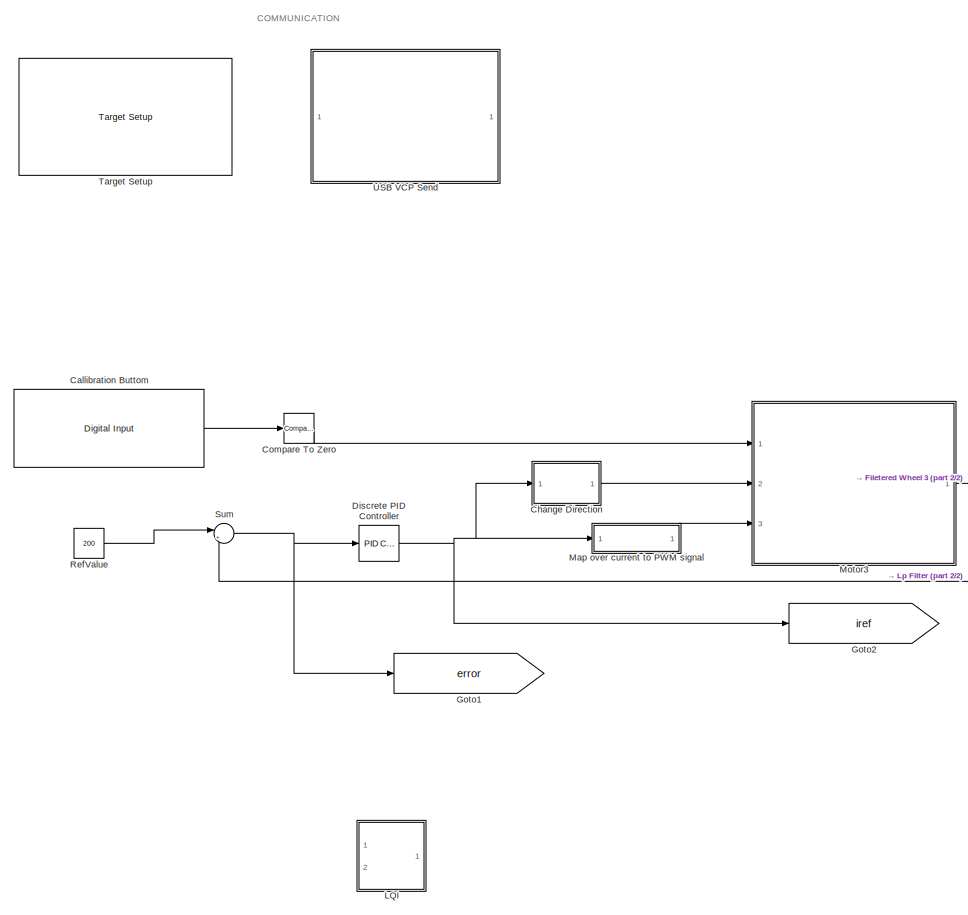
[diagram: root canvas - part 1/2, left side, full height]
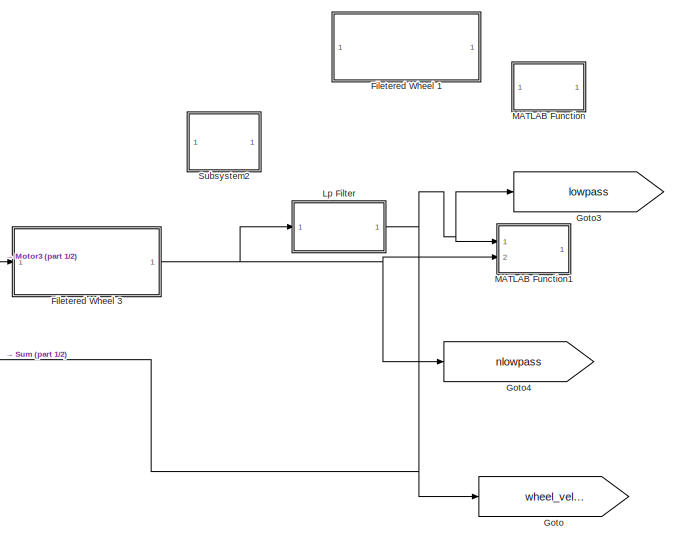
[diagram: root canvas - part 2/2, middle right region]
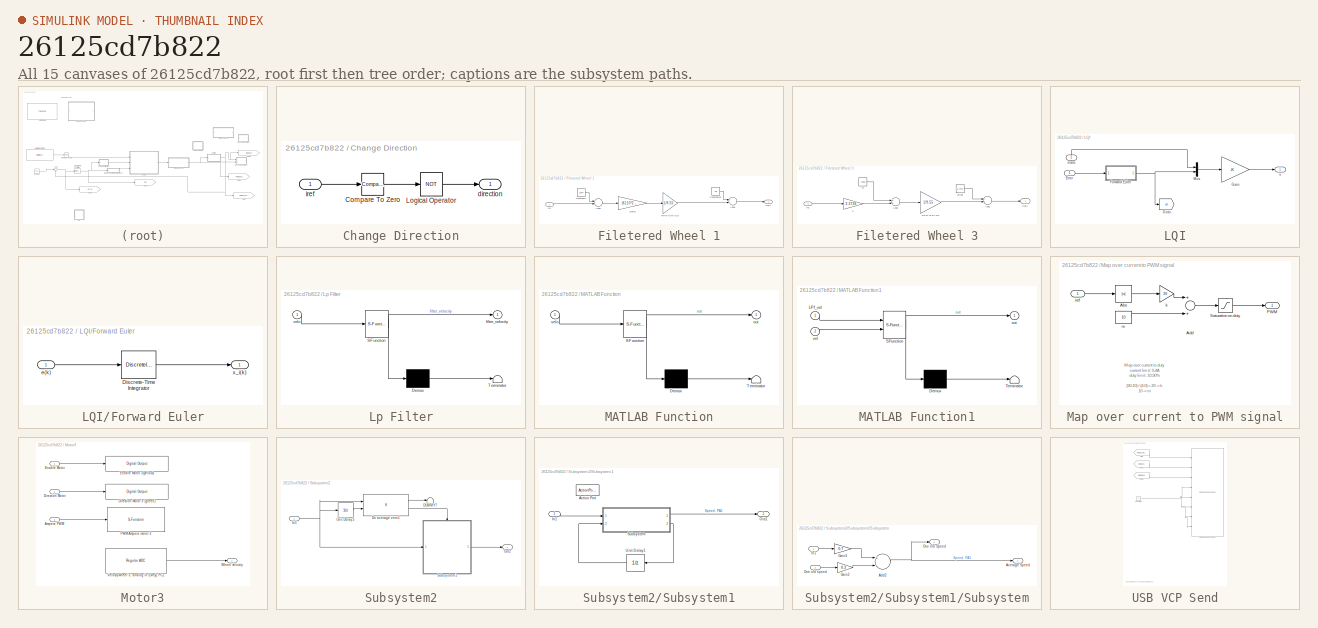
[diagram: thumbnail index - all 15 canvases of the model, root first then tree order]
MODEL slx_26125cd7b822
KIND model
CONFIG AbsTol = auto
CONFIG EnableMultiTasking = off
CONFIG FixedStep = auto
CONFIG InitFcn = cubeparameters
CONFIG MaxStep = auto
CONFIG MinStep = auto
CONFIG PreLoadFcn = waijung.modelPreload; % Required for working with Waijung Blockset. Do not remove.
CONFIG RelTol = 1e-3
CONFIG SampleTimeConstraint = Unconstrained
CONFIG Solver = FixedStepAuto
CONFIG SolverName = FixedStepAuto
CONFIG StartTime = 0.0
CONFIG StopTime = 10.0
BLOCK [Reference] Callibration Buttom  REF=stm32f4_io_lib/Digital Input
  Ports = [0, 1]
  SourceBlock = stm32f4_io_lib/Digital Input
  SourceType = stm32f4_digital_input
BLOCK [SubSystem] Change Direction
  Ports = [1, 1]
  RequestExecContextInheritance = off
  Variant = off
BLOCK [Reference] Change Direction/Compare To Zero  REF=simulink/Logic and Bit
Operations/Compare
To Zero
  Ports = [1, 1]
  SourceBlock = simulink/Logic and Bit\nOperations/Compare\nTo Zero
  SourceType = Compare To Zero
BLOCK [Logic] Change Direction/Logical Operator
  AllPortsSameDT = off
  Operator = NOT
  OutDataTypeStr = boolean
  Ports = [1, 1]
BLOCK [Outport] Change Direction/direction
  IconDisplay = Port number
BLOCK [Inport] Change Direction/iref
  IconDisplay = Port number
BLOCK [Reference] Compare To Zero  REF=simulink/Logic and Bit
Operations/Compare
To Zero
  Ports = [1, 1]
  SourceBlock = simulink/Logic and Bit\nOperations/Compare\nTo Zero
  SourceType = Compare To Zero
BLOCK [Reference] Discrete PID Controller  REF=simulink/Continuous/PID Controller
  Ports = [1, 1]
  SourceBlock = simulink/Continuous/PID Controller
  SourceType = PID 1dof
BLOCK [SubSystem] Filetered Wheel 1
  Commented = on
  Ports = [1, 1]
  RequestExecContextInheritance = off
  Variant = off
BLOCK [Sum] Filetered Wheel 1/Add3
  InputSameDT = off
  Inputs = -+
  OutDataTypeStr = Inherit: Inherit via internal rule
  Ports = [2, 1]
  SaturateOnIntegerOverflow = off
BLOCK [Sum] Filetered Wheel 1/Add9
  InputSameDT = off
  Inputs = -+
  OutDataTypeStr = Inherit: Inherit via internal rule
  Ports = [2, 1]
  SaturateOnIntegerOverflow = off
BLOCK [Constant] Filetered Wheel 1/Constant1
  SampleTime = -1
  Value = 2094
BLOCK [Constant] Filetered Wheel 1/Constant15
  SampleTime = -1
  Value = 68
BLOCK [Gain] Filetered Wheel 1/Gain2
  Gain = (6110*2)/4096
  OutDataTypeStr = Inherit: Inherit via internal rule
  ParamDataTypeStr = Inherit: Inherit via internal rule
  SaturateOnIntegerOverflow = off
BLOCK [Inport] Filetered Wheel 1/In1
  IconDisplay = Port number
BLOCK [Outport] Filetered Wheel 1/Out1
  IconDisplay = Port number
BLOCK [Gain] Filetered Wheel 1/RPM to RAD3
  Gain = 1/9.55
  OutDataTypeStr = Inherit: Inherit via internal rule
  ParamDataTypeStr = Inherit: Inherit via internal rule
  SaturateOnIntegerOverflow = off
BLOCK [SubSystem] Filetered Wheel 3
  Ports = [1, 1]
  RequestExecContextInheritance = off
  Variant = off
BLOCK [Sum] Filetered Wheel 3/Add1
  InputSameDT = off
  Inputs = -+
  OutDataTypeStr = Inherit: Inherit via internal rule
  Ports = [2, 1]
  SaturateOnIntegerOverflow = off
BLOCK [Sum] Filetered Wheel 3/Add3
  InputSameDT = off
  OutDataTypeStr = Inherit: Inherit via internal rule
  Ports = [2, 1]
  SaturateOnIntegerOverflow = off
BLOCK [Inport] Filetered Wheel 3/In1
  IconDisplay = Port number
BLOCK [Outport] Filetered Wheel 3/Out1
  IconDisplay = Port number
BLOCK [Gain] Filetered Wheel 3/RPM to RAD3
  Gain = 1/9.55
  OutDataTypeStr = Inherit: Inherit via internal rule
  ParamDataTypeStr = Inherit: Inherit via internal rule
  SaturateOnIntegerOverflow = off
BLOCK [Gain] Filetered Wheel 3/k
  Gain = 2.3736
  OutDataTypeStr = Inherit: Inherit via internal rule
  ParamDataTypeStr = Inherit: Inherit via internal rule
  SaturateOnIntegerOverflow = off
BLOCK [Constant] Filetered Wheel 3/m
  SampleTime = Ts.controller
  Value = -4860
BLOCK [Constant] Filetered Wheel 3/offset
  SampleTime = Ts.controller
  Value = 61.9744
BLOCK [Goto] Goto
  GotoTag = wheel_velocity
  TagVisibility = global
BLOCK [Goto] Goto1
  GotoTag = error
  TagVisibility = global
BLOCK [Goto] Goto2
  GotoTag = iref
  TagVisibility = global
BLOCK [Goto] Goto3
  GotoTag = lowpass
  TagVisibility = global
BLOCK [Goto] Goto4
  GotoTag = nlowpass
  TagVisibility = global
BLOCK [SubSystem] LQI
  Commented = on
  Ports = [2, 1]
  RequestExecContextInheritance = off
  Variant = off
BLOCK [Inport] LQI/Error
  IconDisplay = Port number
BLOCK [SubSystem] LQI/Forward Euler
  Ports = [1, 1]
  RequestExecContextInheritance = off
  Variant = off
BLOCK [DiscreteIntegrator] LQI/Forward Euler/Discrete-Time Integrator
  ICPrevOutput = DiscIntNeverNeededParam
  ICPrevScaledInput = DiscIntNeverNeededParam
  InitialConditionSetting = State (most efficient)
  LimitOutput = on
  LowerSaturationLimit = -motor.Imax
  Ports = [1, 1]
  SampleTime = Ts.controller
  UpperSaturationLimit = motor.Imax
BLOCK [Inport] LQI/Forward Euler/e(k)
  IconDisplay = Port number
BLOCK [Outport] LQI/Forward Euler/x_i(k)
  IconDisplay = Port number
BLOCK [Gain] LQI/Gain
  Gain = -K
  Multiplication = Matrix(K*u) (u vector)
  OutDataTypeStr = Inherit: Inherit via internal rule
  ParamDataTypeStr = Inherit: Inherit via internal rule
  SaturateOnIntegerOverflow = off
BLOCK [Goto] LQI/Goto
  GotoTag = xi
  TagVisibility = global
BLOCK [Mux] LQI/Mux
  DisplayOption = bar
  Inputs = 2
  Ports = [2, 1]
BLOCK [Inport] LQI/state
  IconDisplay = Port number
  Port = 2
BLOCK [Outport] LQI/u
  IconDisplay = Port number
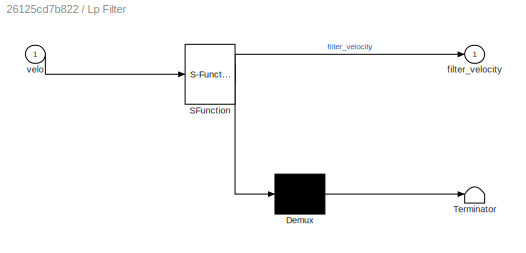
BLOCK [SubSystem] Lp Filter
  ErrorFcn = Stateflow.Translate.translate
  PermitHierarchicalResolution = ExplicitOnly
  Ports = [1, 1]
  RequestExecContextInheritance = off
  SFBlockType = MATLAB Function
  TreatAsAtomicUnit = on
  Variant = off
BLOCK [Demux] Lp Filter/ Demux 
  Outputs = 1
  Ports = [1, 1]
BLOCK [S-Function] Lp Filter/ SFunction 
  EnableBusSupport = on
  FunctionName = sf_sfun
  Parameters = Ts
  PortCounts = [1 2]
  Ports = [1, 2]
  SFcnIsStateOwnerBlock = off
  SFunctionDeploymentMode = off
  Tag = Stateflow S-Function MotorSpeedController 10
BLOCK [Terminator] Lp Filter/ Terminator 
BLOCK [Outport] Lp Filter/filter_velocity
  IconDisplay = Port number
BLOCK [Inport] Lp Filter/velo
  IconDisplay = Port number
BLOCK [SubSystem] MATLAB Function
  Commented = on
  ErrorFcn = Stateflow.Translate.translate
  PermitHierarchicalResolution = ExplicitOnly
  Ports = [1, 1]
  RequestExecContextInheritance = off
  SFBlockType = MATLAB Function
  TreatAsAtomicUnit = on
  Variant = off
BLOCK [Demux] MATLAB Function/ Demux 
  Outputs = 1
  Ports = [1, 1]
BLOCK [S-Function] MATLAB Function/ SFunction 
  EnableBusSupport = on
  FunctionName = sf_sfun
  PortCounts = [1 2]
  Ports = [1, 2]
  SFcnIsStateOwnerBlock = off
  SFunctionDeploymentMode = off
  Tag = Stateflow S-Function MotorSpeedController 2
BLOCK [Terminator] MATLAB Function/ Terminator 
BLOCK [Outport] MATLAB Function/out
  IconDisplay = Port number
BLOCK [Inport] MATLAB Function/velo
  IconDisplay = Port number
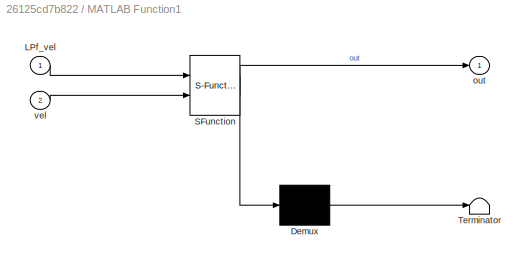
BLOCK [SubSystem] MATLAB Function1
  ErrorFcn = Stateflow.Translate.translate
  PermitHierarchicalResolution = ExplicitOnly
  Ports = [2, 1]
  RequestExecContextInheritance = off
  SFBlockType = MATLAB Function
  TreatAsAtomicUnit = on
  Variant = off
BLOCK [Demux] MATLAB Function1/ Demux 
  Outputs = 1
  Ports = [1, 1]
BLOCK [S-Function] MATLAB Function1/ SFunction 
  EnableBusSupport = on
  FunctionName = sf_sfun
  PortCounts = [2 2]
  Ports = [2, 2]
  SFcnIsStateOwnerBlock = off
  SFunctionDeploymentMode = off
  Tag = Stateflow S-Function MotorSpeedController 1
BLOCK [Terminator] MATLAB Function1/ Terminator 
BLOCK [Inport] MATLAB Function1/LPf_vel
  IconDisplay = Port number
BLOCK [Outport] MATLAB Function1/out
  IconDisplay = Port number
BLOCK [Inport] MATLAB Function1/vel
  IconDisplay = Port number
  Port = 2
BLOCK [SubSystem] Map over current to PWM signal
  Ports = [1, 1]
  RequestExecContextInheritance = off
  Variant = off
BLOCK [Abs] Map over current to PWM signal/Abs
  SaturateOnIntegerOverflow = off
BLOCK [Sum] Map over current to PWM signal/Add
  InputSameDT = off
  OutDataTypeStr = Inherit: Inherit via internal rule
  Ports = [2, 1]
  SaturateOnIntegerOverflow = off
BLOCK [Outport] Map over current to PWM signal/PWM
  IconDisplay = Port number
BLOCK [Saturate] Map over current to PWM signal/Saturation on duty
  InputPortMap = u0
  LowerLimit = 10
  OutDataTypeStr = single
  Ports = [1, 1]
  UpperLimit = 90
BLOCK [Inport] Map over current to PWM signal/iref
  IconDisplay = Port number
BLOCK [Gain] Map over current to PWM signal/k
  Gain = 20
  OutDataTypeStr = Inherit: Inherit via internal rule
  ParamDataTypeStr = Inherit: Inherit via internal rule
  SaturateOnIntegerOverflow = off
BLOCK [Constant] Map over current to PWM signal/m
  OutDataTypeStr = single
  SampleTime = Ts.controller
  Value = 10
BLOCK [SubSystem] Motor3
  Ports = [3, 1]
  RequestExecContextInheritance = off
  Variant = off
BLOCK [Inport] Motor3/Ampere PWM
  IconDisplay = Port number
  Port = 3
BLOCK [Inport] Motor3/Direction Motor 
  IconDisplay = Port number
  Port = 2
BLOCK [Reference] Motor3/Direction Motor 3 (green)  REF=stm32f4_io_lib/Digital Output
  Ports = [1]
  SourceBlock = stm32f4_io_lib/Digital Output
  SourceType = stm32f4_digital_output
BLOCK [Inport] Motor3/Enable Motor
  IconDisplay = Port number
BLOCK [Reference] Motor3/Enable Motor 3(yellow)  REF=stm32f4_io_lib/Digital Output
  Ports = [1]
  SourceBlock = stm32f4_io_lib/Digital Output
  SourceType = stm32f4_digital_output
BLOCK [S-Function] Motor3/PWM Ampere motor 3
  EnableBusSupport = off
  FunctionName = stm32f4_basicpwm_fixed
  Parameters = timer,pwmperiod,uc3m_pwmperiod,ch1pin,ch2pin,ch3pin,ch4pin,sampletime,sampletimestr,blockid,apb,portstr,pinstr,pinmat,timarr,timprescale,chmat,polaritystr
  Ports = [1]
  SFcnIsStateOwnerBlock = off
  SFunctionDeploymentMode = off
BLOCK [Reference] Motor3/Velocty wheel 3, analog in (Grey), PC1  REF=stm32f4_adc_lib/Regular ADC
  Ports = [0, 1]
  SourceBlock = stm32f4_adc_lib/Regular ADC
  SourceType = stm32f4_regular_adc
BLOCK [Outport] Motor3/Wheel velocity
  IconDisplay = Port number
BLOCK [Constant] RefValue
  SampleTime = Ts.controller
  Value = 200
BLOCK [SubSystem] Subsystem2
  Commented = on
  Ports = [1, 1]
  RequestExecContextInheritance = off
  Variant = off
BLOCK [Terminator] Subsystem2/DUMMY7
BLOCK [If] Subsystem2/Do average zero1
  IfExpression = u1 == u2
  NumInputs = 2
  Ports = [2, 2]
BLOCK [Inport] Subsystem2/In1
  IconDisplay = Port number
BLOCK [Outport] Subsystem2/Out2
  IconDisplay = Port number
BLOCK [SubSystem] Subsystem2/Subsystem1
  Ports = [1, 1, 0, 0, 0, 0, 0, 1]
  RequestExecContextInheritance = off
  Variant = off
BLOCK [ActionPort] Subsystem2/Subsystem1/Action Port
BLOCK [Inport] Subsystem2/Subsystem1/In1
  IconDisplay = Port number
BLOCK [Outport] Subsystem2/Subsystem1/Out1
  IconDisplay = Port number
BLOCK [SubSystem] Subsystem2/Subsystem1/Subsystem
  Ports = [2, 2]
  RequestExecContextInheritance = off
  Variant = off
BLOCK [Sum] Subsystem2/Subsystem1/Subsystem/Add2
  InputSameDT = off
  OutDataTypeStr = Inherit: Inherit via internal rule
  Ports = [2, 1]
  SaturateOnIntegerOverflow = off
BLOCK [Outport] Subsystem2/Subsystem1/Subsystem/Average Speed
  IconDisplay = Port number
BLOCK [Gain] Subsystem2/Subsystem1/Subsystem/Gain2
  Gain = 0.3
  OutDataTypeStr = Inherit: Inherit via internal rule
  ParamDataTypeStr = Inherit: Inherit via internal rule
  SaturateOnIntegerOverflow = off
BLOCK [Gain] Subsystem2/Subsystem1/Subsystem/Gain3
  Gain = 0.7
  OutDataTypeStr = Inherit: Inherit via internal rule
  ParamDataTypeStr = Inherit: Inherit via internal rule
  SaturateOnIntegerOverflow = off
BLOCK [Inport] Subsystem2/Subsystem1/Subsystem/In1
  IconDisplay = Port number
BLOCK [Outport] Subsystem2/Subsystem1/Subsystem/One old Speed
  IconDisplay = Port number
  Port = 2
BLOCK [Inport] Subsystem2/Subsystem1/Subsystem/One old speed
  IconDisplay = Port number
  Port = 2
BLOCK [UnitDelay] Subsystem2/Subsystem1/Unit Delay1
  InputProcessing = Elements as channels (sample based)
  SampleTime = -1
BLOCK [UnitDelay] Subsystem2/Unit Delay3
  InputProcessing = Elements as channels (sample based)
  SampleTime = -1
BLOCK [Sum] Sum
  IconShape = round
  InputSameDT = off
  Inputs = |+-
  OutDataTypeStr = Inherit: Inherit via internal rule
  Ports = [2, 1]
  SaturateOnIntegerOverflow = off
BLOCK [Reference] Target Setup  REF=stm32f4_device_config_lib/Target Setup
  Ports = []
  Priority = 100
  SourceBlock = stm32f4_device_config_lib/Target Setup
  SourceType = stm32f4_target_setup
BLOCK [SubSystem] USB VCP Send
  Ports = []
  RequestExecContextInheritance = off
  Variant = off
BLOCK [Constant] USB VCP Send/Constant
  SampleTime = Ts.controller
  Value = 0
BLOCK [From] USB VCP Send/From
  GotoTag = wheel_velocity
  TagVisibility = global
BLOCK [From] USB VCP Send/From1
  GotoTag = lowpass
  TagVisibility = global
BLOCK [From] USB VCP Send/From2
  GotoTag = nlowpass
  TagVisibility = global
BLOCK [Reference] USB VCP Send/USB VCP Send STM32F1  REF=BC_USB/USB VCP Send STM32F4
  Ports = [8]
  SourceBlock = BC_USB/USB VCP Send STM32F4
  SourceType = USB_VCP_SEND_STM32F4 High Speed Large Data Packet Size
ANNOTATION (root): COMMUNICATION
ANNOTATION Map over current to PWM signal: Map over current to duty current limit: 0-4A duty limit: 10-90% (90-10) / (4-0) = 20 -> k 10 -> m
ANNOTATION USB VCP Send: NOTE: All Goto blocks need to be set in global
LINE Callibration Buttom:1 -> Compare To Zero:1
LINE Change Direction/Compare To Zero:1 -> Change Direction/Logical Operator:1
LINE Change Direction/Logical Operator:1 -> Change Direction/direction:1
LINE Change Direction/iref:1 -> Change Direction/Compare To Zero:1
LINE Change Direction:1 -> Motor3:2
LINE Compare To Zero:1 -> Motor3:1
NET Discrete PID Controller:1 -> Change Direction:1, Goto2:1, Map over current to PWM signal:1
LINE Filetered Wheel 1/Add3:1 -> Filetered Wheel 1/Gain2:1
LINE Filetered Wheel 1/Add9:1 -> Filetered Wheel 1/Out1:1
LINE Filetered Wheel 1/Constant15:1 -> Filetered Wheel 1/Add9:1
LINE Filetered Wheel 1/Constant1:1 -> Filetered Wheel 1/Add3:1
LINE Filetered Wheel 1/Gain2:1 -> Filetered Wheel 1/RPM to RAD3:1
LINE Filetered Wheel 1/In1:1 -> Filetered Wheel 1/Add3:2
LINE Filetered Wheel 1/RPM to RAD3:1 -> Filetered Wheel 1/Add9:2
LINE Filetered Wheel 3/Add1:1 -> Filetered Wheel 3/Out1:1
LINE Filetered Wheel 3/Add3:1 -> Filetered Wheel 3/RPM to RAD3:1
LINE Filetered Wheel 3/In1:1 -> Filetered Wheel 3/k:1
LINE Filetered Wheel 3/RPM to RAD3:1 -> Filetered Wheel 3/Add1:2
LINE Filetered Wheel 3/k:1 -> Filetered Wheel 3/Add3:2
LINE Filetered Wheel 3/m:1 -> Filetered Wheel 3/Add3:1
LINE Filetered Wheel 3/offset:1 -> Filetered Wheel 3/Add1:1
NET Filetered Wheel 3:1 -> Goto4:1, Lp Filter:1, MATLAB Function1:2
LINE LQI/Error:1 -> LQI/Forward Euler:1
LINE LQI/Forward Euler/Discrete-Time Integrator:1 -> LQI/Forward Euler/x_i(k):1
LINE LQI/Forward Euler/e(k):1 -> LQI/Forward Euler/Discrete-Time Integrator:1
NET LQI/Forward Euler:1 -> LQI/Goto:1, LQI/Mux:2
LINE LQI/Gain:1 -> LQI/u:1
LINE LQI/Mux:1 -> LQI/Gain:1
LINE LQI/state:1 -> LQI/Mux:1
NET Lp Filter:1 -> Goto3:1, Goto:1, MATLAB Function1:1, Sum:2
LINE Map over current to PWM signal/Abs:1 -> Map over current to PWM signal/k:1
LINE Map over current to PWM signal/Add:1 -> Map over current to PWM signal/Saturation on duty:1
LINE Map over current to PWM signal/Saturation on duty:1 -> Map over current to PWM signal/PWM:1
LINE Map over current to PWM signal/iref:1 -> Map over current to PWM signal/Abs:1
LINE Map over current to PWM signal/k:1 -> Map over current to PWM signal/Add:1
LINE Map over current to PWM signal/m:1 -> Map over current to PWM signal/Add:2
LINE Map over current to PWM signal:1 -> Motor3:3
LINE Motor3/Ampere PWM:1 -> Motor3/PWM Ampere motor 3:1
LINE Motor3/Direction Motor :1 -> Motor3/Direction Motor 3 (green):1
LINE Motor3/Enable Motor:1 -> Motor3/Enable Motor 3(yellow):1
LINE Motor3/Velocty wheel 3, analog in (Grey), PC1:1 -> Motor3/Wheel velocity:1
LINE Motor3:1 -> Filetered Wheel 3:1
LINE RefValue:1 -> Sum:1
LINE Subsystem2/Do average zero1:1 -> Subsystem2/DUMMY7:1
LINE Subsystem2/Do average zero1:2 -> Subsystem2/Subsystem1:ifaction
NET Subsystem2/In1:1 -> Subsystem2/Do average zero1:1, Subsystem2/Subsystem1:1, Subsystem2/Unit Delay3:1
LINE Subsystem2/Subsystem1/In1:1 -> Subsystem2/Subsystem1/Subsystem:1
NET Subsystem2/Subsystem1/Subsystem/Add2:1 -> Subsystem2/Subsystem1/Subsystem/Average Speed:1, Subsystem2/Subsystem1/Subsystem/One old Speed:1
LINE Subsystem2/Subsystem1/Subsystem/Gain2:1 -> Subsystem2/Subsystem1/Subsystem/Add2:2
LINE Subsystem2/Subsystem1/Subsystem/Gain3:1 -> Subsystem2/Subsystem1/Subsystem/Add2:1
LINE Subsystem2/Subsystem1/Subsystem/In1:1 -> Subsystem2/Subsystem1/Subsystem/Gain3:1
LINE Subsystem2/Subsystem1/Subsystem/One old speed:1 -> Subsystem2/Subsystem1/Subsystem/Gain2:1
LINE Subsystem2/Subsystem1/Subsystem:1 -> Subsystem2/Subsystem1/Out1:1
LINE Subsystem2/Subsystem1/Subsystem:2 -> Subsystem2/Subsystem1/Unit Delay1:1
LINE Subsystem2/Subsystem1/Unit Delay1:1 -> Subsystem2/Subsystem1/Subsystem:2
LINE Subsystem2/Subsystem1:1 -> Subsystem2/Out2:1
LINE Subsystem2/Unit Delay3:1 -> Subsystem2/Do average zero1:2
NET Sum:1 -> Discrete PID Controller:1, Goto1:1
NET USB VCP Send/Constant:1 -> USB VCP Send/USB VCP Send STM32F1:4, USB VCP Send/USB VCP Send STM32F1:5, USB VCP Send/USB VCP Send STM32F1:6, USB VCP Send/USB VCP Send STM32F1:7, USB VCP Send/USB VCP Send STM32F1:8
LINE USB VCP Send/From1:1 -> USB VCP Send/USB VCP Send STM32F1:2
LINE USB VCP Send/From2:1 -> USB VCP Send/USB VCP Send STM32F1:3
LINE USB VCP Send/From:1 -> USB VCP Send/USB VCP Send STM32F1:1
note: NET lines group one-source signal fan-out (src -> all destinations, sorted); 1:1 wires keep LINE
CHART MATLAB Function1 states=1 transitions=1
  STATE_LABEL 'eML_blk_kernel()'
  STATE_LABEL 'SCRIPT:\nfunction out = outlier(LPf_vel, vel)\n\npersistent old_out;\n\nif isempty(old_out)\n    old_out = zeros(1,1);\nend\n\nif(abs(LPf_vel-vel) <= 2 )\n   old_out = vel;\n   out = vel;\nelse\n   old = old_out;\n   out = old;\nend\n'
CHART MATLAB Function states=1 transitions=1
  STATE_LABEL 'eML_blk_kernel()'
  STATE_LABEL 'SCRIPT:\nfunction out = outlier(velo)\n\npersistent omega outlierfree;\n\nif isempty(omega)\n     omega = zeros(2,1);\n     outlierfree = 0;\n     omega(1) = velo;\nend\n omega(2) = velo;\n\nif (abs(omega(2)-omega(1)) < 4)\n    outlierfree = omega(2);\nend\n\nomega(1) = omega(2);\n\nout = outlierfree;\n'
CHART Lp Filter states=1 transitions=1
  STATE_LABEL 'eML_blk_kernel()'
  STATE_LABEL 'SCRIPT:\nfunction filter_velocity  = velocity(velo, Ts)\n\npersistent f_velo;\npersistent L_velo;\n\n\nif isempty(f_velo)\n   f_velo = 0;\n   \n   Tf_velo = 0.2;         % Time Constant % 0.04\n   L_velo  = Ts.controller/(Tf_velo + Ts.controller);  % Filter gain\nend\n\n% LP Filter\nf_velo = (1-L_velo) * f_velo + L_velo * velo;\nfilter_velocity = f_velo;\n'
